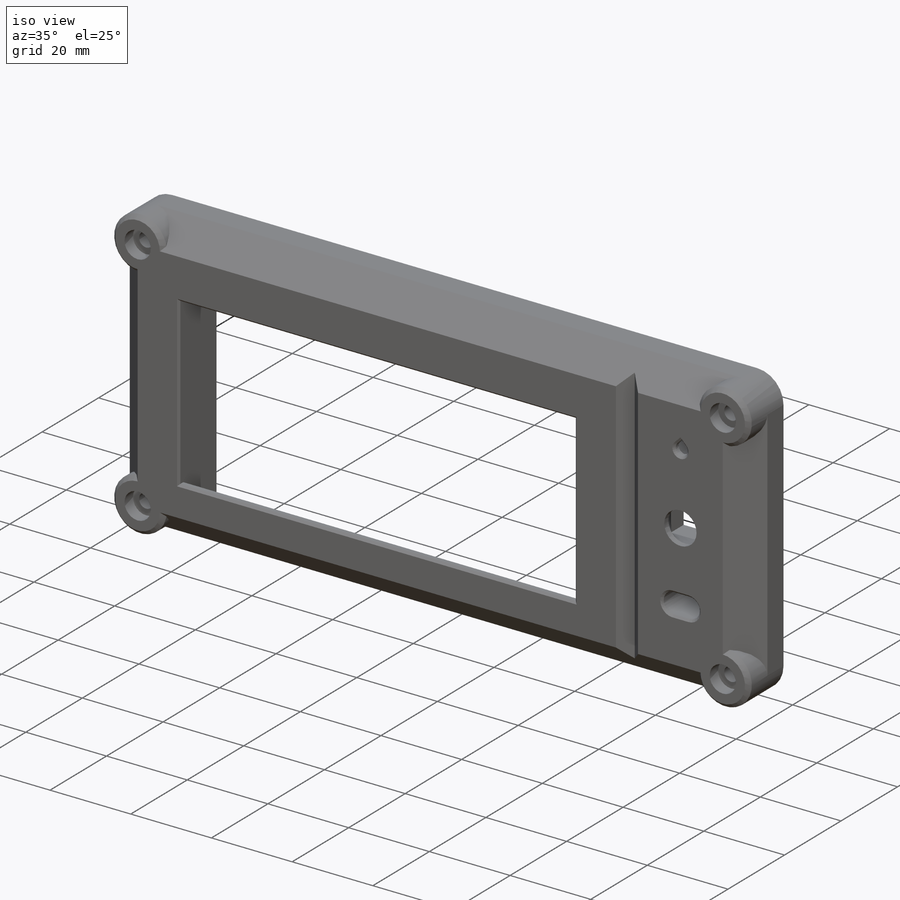
[diagram: iso view]
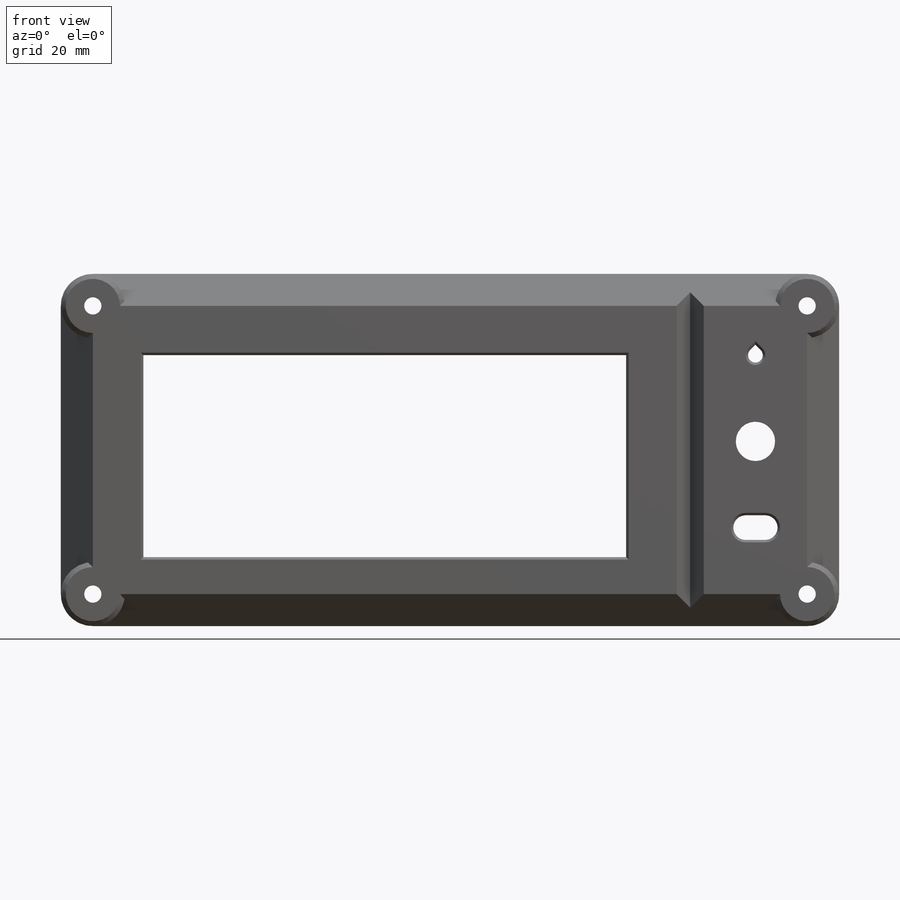
[diagram: front view]
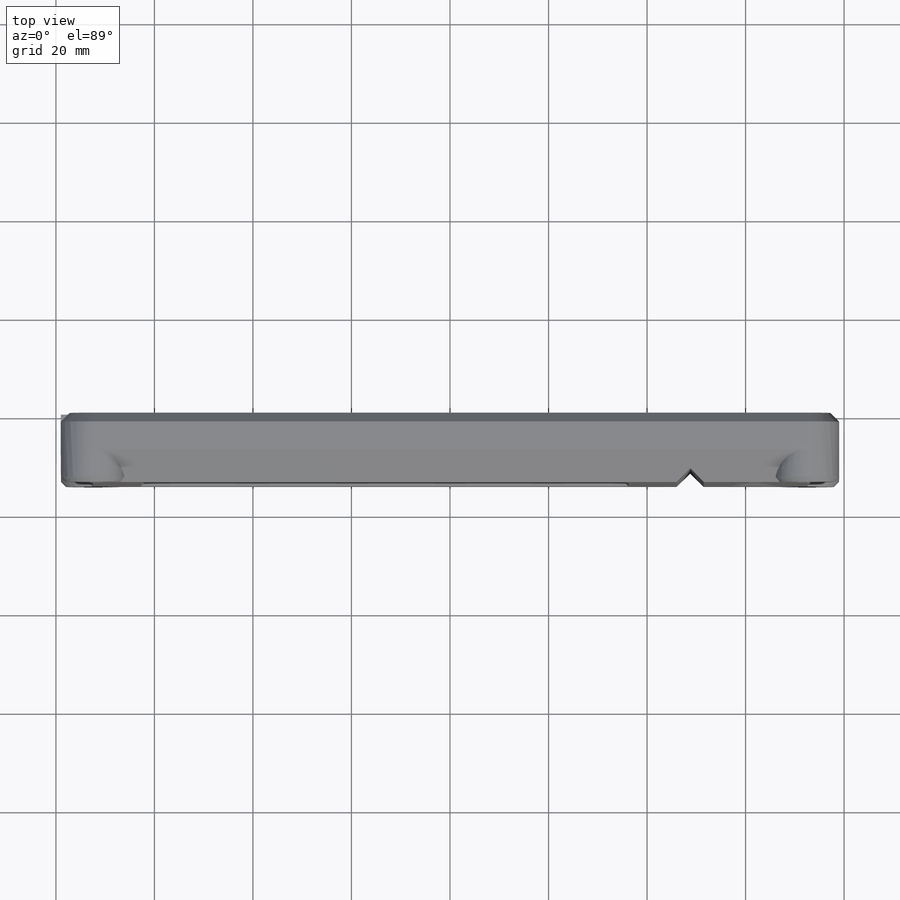
[diagram: top view]
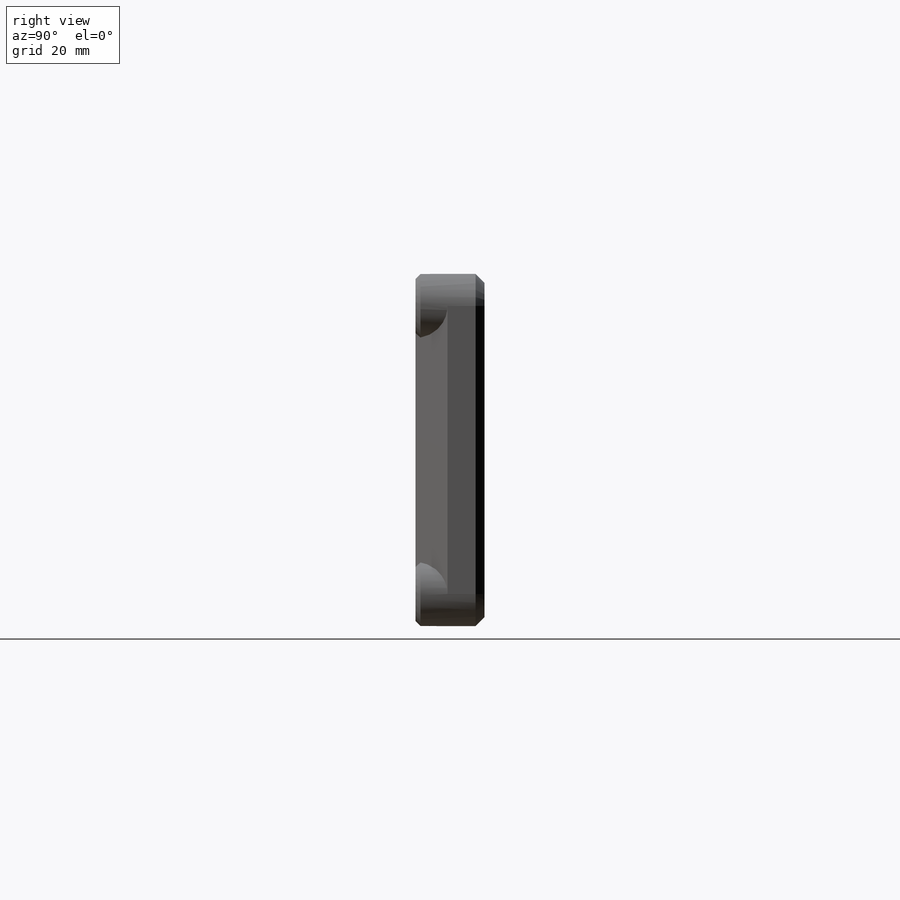
[diagram: right view]
SOLIDWORKS PART (.sldprt)
format: sldprt  version: not decoded by parser v0  size: 901,120 bytes
history: native  units: mm
features: sketch x25, cut_extrude x11, plane x6, chamfer x5, extrude x4, material x1, sweep x1 (+15 scaffold rows collapsed; 4 parser-record rows omitted)
feature tree (72):
  scaffold x15  (default folders/planes/origin — collapsed)
  material  "Material <not specified>"
  sketch  "Sketch5"  dims[c1.D1=0.5mm c2.D1=1.0mm c2.D2=4.25mm]
  sketch  "Sketch14"  dims[D2=26.5mm D1=0.0mm]
  sweep  "Sweep2"
  sketch  "Sketch6"  dims[c1.D1=~100.094844mm c1.D2=~6.719869mm c2.D1=0.5mm c2.D2=0.5mm c2.D3=0.5mm c3.D1=0.0mm]
  cut_extrude  "Cut-Extrude1"  [1 undecoded]
  sketch  "Sketch8"  dims[c1.D1=54.5mm c1.D2=~10.412857mm c2.D1=54.5mm c2.D2=~15.14164mm c3.D1=2.0mm c3.D2=2.0mm c3.D3=2.0mm c3.D4=~15.019338mm c4.D1=~9.618765mm c5.D1=45.0deg c5.D2=2.0mm c5.D4=7.75mm c5.D3=12.0mm c6.D1=6.0mm c6.D2=12.0mm c6.D3=54.5mm c6.D4=~16.385889mm c7.D3=~63.737436mm c7.D4=~15.78445mm c8.D3=~9.364111mm]
  extrude  "Boss-Extrude1"  [1 undecoded]
  sketch  "Sketch9"  dims[D1=0.0mm]
  extrude  "Boss-Extrude2"  Depth=1mm
  sketch  "Sketch10"  dims[c1.D1=~43.651075mm c1.D2=~104.346856mm c2.D1=0.5mm c2.D2=0.5mm]
  cut_extrude  "Cut-Extrude2"  [1 undecoded]
  sketch  "Sketch11"  dims[D1=3.5mm]
  cut_extrude  "Cut-Extrude4"  [1 undecoded]
  sketch  "Sketch12"  dims[c1.D1=~2.054054mm c1.D2=2.0mm c1.D3=8.0mm c2.D1=8.0mm c2.D6=5.0mm c2.D2=1.5mm c3.D1=6.0mm c3.D4=~4.443274mm c4.D1=~3.663459mm c4.D2=~3.400547mm c4.D3=2.0mm c4.D7=4.0mm c5.D1=4.0mm c5.D2=~4.480782mm c5.D3=~10.026166mm c6.D2=2.0mm c6.D3=6.0mm c6.D6=5.0mm c6.D7=4.0mm c7.D2=2.0mm c7.D3=11.0mm c7.D8=11.0mm c7.D9=11.0mm c7.D10=10.0mm c8.D8=11.0mm c8.D2=11.0mm c9.D8=11.0mm c9.D2=11.0mm c10.D8=11.0mm c10.D9=4.0mm c10.D2=~2.610597mm c11.D8=11.0mm c11.D9=10.0mm c12.D8=12.0mm c12.D10=17.5mm c12.D11=17.5mm c12.D1=0.0mm c12.D2=0.0mm c12.D4=0.0mm c12.D5=0.0mm c12.D6=0.0mm]
  cut_extrude  "Cut-Extrude10"  [1 undecoded]
  parser-record x4  (decoder bookkeeping rows leaked as tree rows — omitted from the tree; the rows remain in map.json)
  plane  "Plane3"  Offset=1.5mm
  plane  "Plane4"  Offset=4.5mm
  sketch  "Sketch16"  dims[D1=8.0mm]
  sketch  "Sketch17"  dims[c1.D1=~14.528585mm c1.D2=~17.128095mm c2.D1=18.0mm c2.D2=14.0mm]
  cut_extrude  "Cut-Extrude6"  [1 undecoded]
  sketch  "Sketch17<3>"
  plane  "Plane5"  Offset=10mm
  plane  "Plane8"
  sketch  "Sketch19"  dims[D1=15.0mm D2=20.0mm]
  cut_extrude  "Cut-Extrude11"  [1 undecoded]
  sketch  "Sketch26"  dims[c1.D1=~16.85733mm c1.D2=~3.40816mm c2.D1=~14.89617mm c2.D2=2.0mm c3.D1=0.0mm]
  sketch  "Sketch28"
  plane  "Plane6"  Offset=3mm
  plane  "Plane7"  Offset=5mm
  sketch  "Sketch21"  dims[c1.D1=~6.120334mm c1.D2=~9.666014mm c2.D1=8.0mm c2.D2=12.0mm]
  sketch  "Sketch22"
  cut_extrude  "Cut-Extrude8"  [1 undecoded]
  sketch  "Sketch21<2>"
  sketch  "Sketch30"  dims[D1=13.0mm D2=16.75mm D3=58.5mm]
  chamfer  "Chamfer3"  Distance=6.5mm Angle=45deg
  sketch  "Sketch31"  dims[D1=10.5mm D2=10.5mm D3=~0.94119mm]
  sketch  "Sketch32"  dims[c1.D1=~6.67228mm c2.D1=45.0deg]
  cut_extrude  "Cut-Extrude14"  [1 undecoded]
  chamfer  "Chamfer4"  Distance=6.5mm Angle=45deg
  chamfer  "Chamfer5"  Distance=1mm Angle=45deg
  sketch  "Sketch34"
  extrude  "Boss-Extrude3"  Depth=1mm
  sketch  "Sketch36"
  cut_extrude  "Cut-Extrude15"  [1 undecoded]
  sketch  "Sketch23"  dims[D1=6.5mm]
  cut_extrude  "Cut-Extrude9"  Depth=3mm
  sketch  "Sketch37"  dims[c1.D1=1.5mm c1.D2=1.5mm c2.D1=1.5mm]
  cut_extrude  "Cut-Extrude16"  [1 undecoded]
  chamfer  "Chamfer7"  Distance=0.5mm Angle=45deg
  chamfer  "Chamfer8"  Distance=0.5mm Angle=45deg
  sketch  "Sketch38"  dims[c1.D1=~23.283783mm c1.D2=1.8mm c2.D1=0.5mm c2.D2=0.5mm]
  extrude  "Boss-Extrude4"  [1 undecoded]
decode coverage: 27 of 46 modeling features carry decoded parameters
note: ~ marks probable driven/reference dimensions
note: 12 parameter values undecoded
summary: no parameter record found for 12 features
note: suppression state not decoded; provenance and decode notes live in map.json
